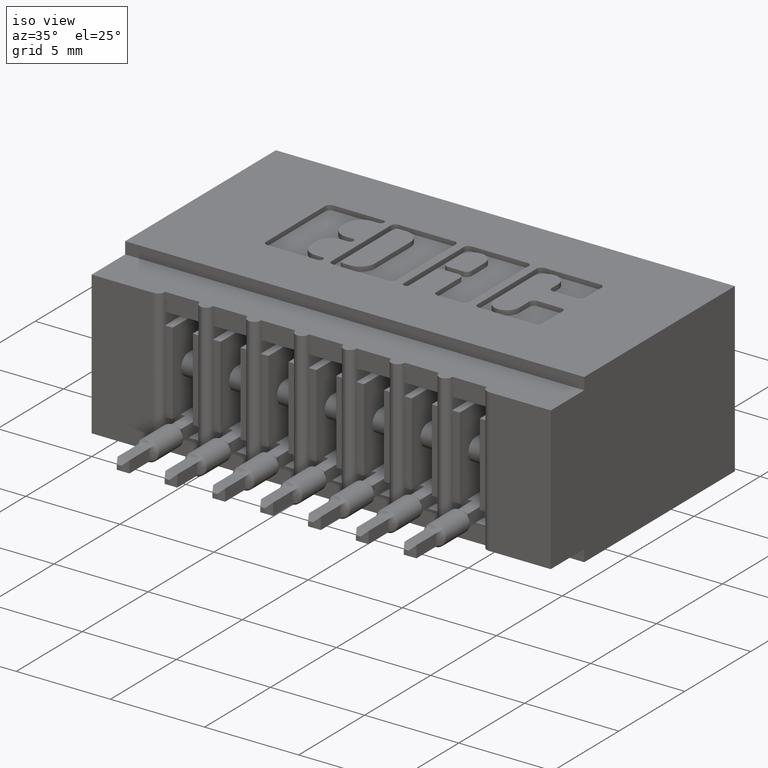
[diagram: clean part render]
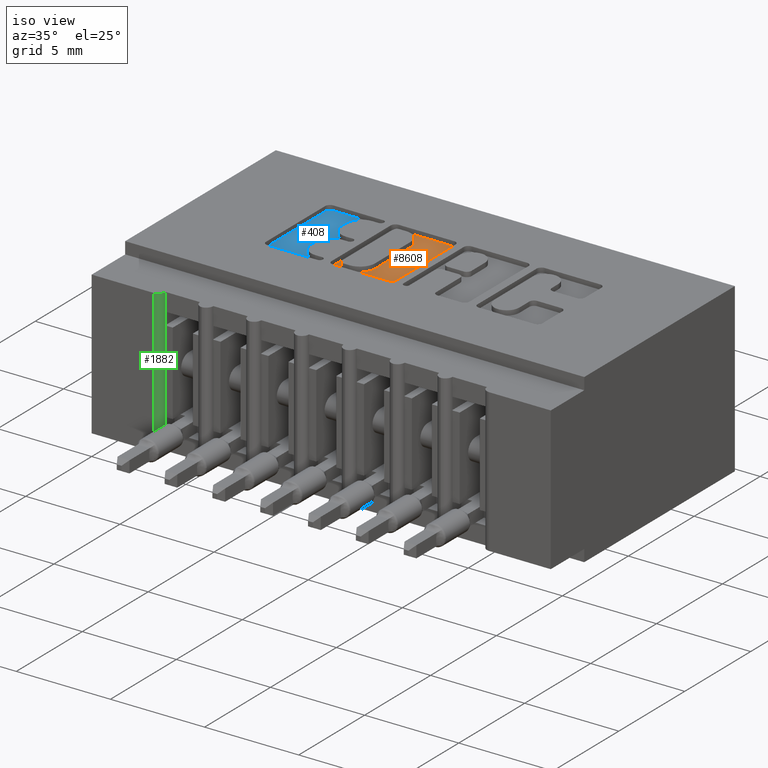
[diagram: same view with three faces highlighted in distinct colors, each labeled with its STEP entity id]
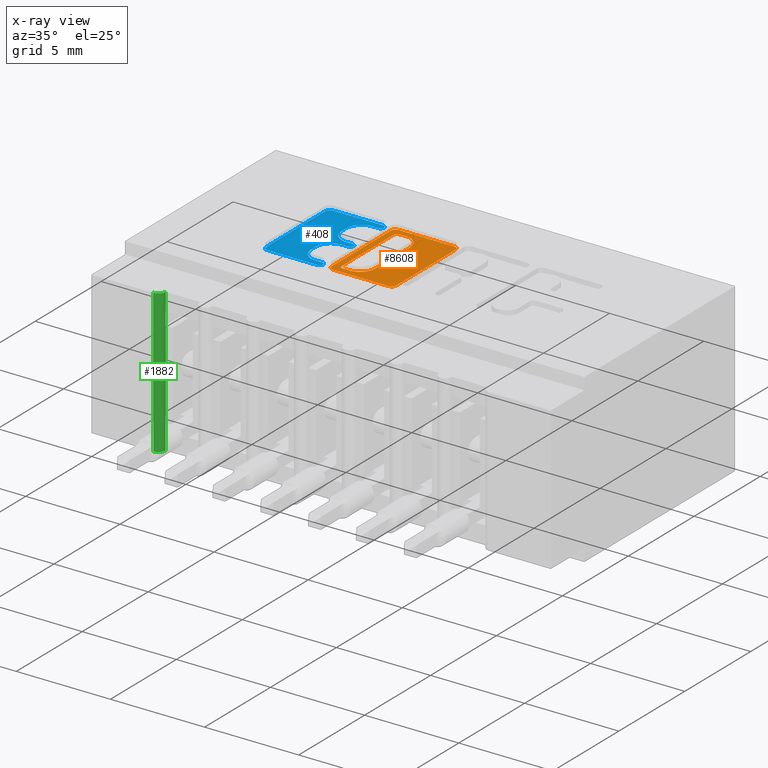
[diagram: x-ray of the same camera — body ghosted, the three highlighted faces saturated]
A machine part, iso view with three faces highlighted in distinct colors.
The next image is the same camera in x-ray (body ghosted, the three faces saturated) — at least one of them is partly hidden behind the body in this view.
Their STEP definitions:

[orange] entity #8608 — the highlighted planar face has unit normal (0, 0, 1).
#8 = DIRECTION ( 'NONE',  ( 1.000000000000000000, 0.0000000000000000000, 0.0000000000000000000 ) ) ;
#33 = EDGE_CURVE ( 'NONE', #13579, #7256, #3753, .T. ) ;
#178 = DIRECTION ( 'NONE',  ( 0.0000000000000000000, 1.000000000000000000, -0.0000000000000000000 ) ) ;
#272 = VERTEX_POINT ( 'NONE', #9736 ) ;
#504 = ORIENTED_EDGE ( 'NONE', *, *, #5638, .T. ) ;
#608 = ORIENTED_EDGE ( 'NONE', *, *, #15634, .T. ) ;
#621 = CARTESIAN_POINT ( 'NONE',  ( 0.3496969780444987300, 0.2474562053899775900, -0.01000000000000000000 ) ) ;
#1015 = DIRECTION ( 'NONE',  ( 1.000000000000000000, 0.0000000000000000000, 0.0000000000000000000 ) ) ;
#1055 = EDGE_LOOP ( 'NONE', ( #7541, #15272, #12362, #15251, #14237, #1564, #16166, #1810 ) ) ;
#1467 = EDGE_CURVE ( 'NONE', #13830, #272, #3519, .T. ) ;
#1482 = EDGE_CURVE ( 'NONE', #5875, #1607, #12809, .T. ) ;
#1564 = ORIENTED_EDGE ( 'NONE', *, *, #6368, .T. ) ;
#1607 = VERTEX_POINT ( 'NONE', #4526 ) ;
#1710 = LINE ( 'NONE', #10295, #14736 ) ;
#1755 = CARTESIAN_POINT ( 'NONE',  ( 0.0000000000000000000, 0.4231567020380511100, -0.01000000000000000000 ) ) ;
#1765 = DIRECTION ( 'NONE',  ( -0.0000000000000000000, 0.0000000000000000000, 1.000000000000000000 ) ) ;
#1780 = DIRECTION ( 'NONE',  ( -0.0000000000000000000, 0.0000000000000000000, 1.000000000000000000 ) ) ;
#1810 = ORIENTED_EDGE ( 'NONE', *, *, #10797, .T. ) ;
#1906 = AXIS2_PLACEMENT_3D ( 'NONE', #9937, #2361, #11205 ) ;
#1940 = ORIENTED_EDGE ( 'NONE', *, *, #14394, .T. ) ;
#2265 = DIRECTION ( 'NONE',  ( -1.000000000000000000, 0.0000000000000000000, 0.0000000000000000000 ) ) ;
#2312 = AXIS2_PLACEMENT_3D ( 'NONE', #12847, #5305, #14100 ) ;
#2361 = DIRECTION ( 'NONE',  ( -0.0000000000000000000, 0.0000000000000000000, 1.000000000000000000 ) ) ;
#2386 = CARTESIAN_POINT ( 'NONE',  ( 0.0000000000000000000, 0.4094147637527246200, -0.01000000000000000000 ) ) ;
#2388 = DIRECTION ( 'NONE',  ( -0.0000000000000000000, 0.0000000000000000000, 1.000000000000000000 ) ) ;
#2434 = CARTESIAN_POINT ( 'NONE',  ( 0.4615956183678960900, 0.4231567020380511100, -0.01000000000000000000 ) ) ;
#2438 = EDGE_CURVE ( 'NONE', #15085, #7253, #14533, .T. ) ;
#3004 = DIRECTION ( 'NONE',  ( -1.000000000000000000, 0.0000000000000000000, 0.0000000000000000000 ) ) ;
#3028 = CARTESIAN_POINT ( 'NONE',  ( 0.3708006689826734400, 0.2405852362473143700, -0.01000000000000000000 ) ) ;
#3188 = CARTESIAN_POINT ( 'NONE',  ( 0.4615956183678279200, 0.4133410318342100600, -0.01000000000000000000 ) ) ;
#3431 = ORIENTED_EDGE ( 'NONE', *, *, #7722, .T. ) ;
#3519 = CIRCLE ( 'NONE', #14000, 0.009815670203806891800 ) ;
#3649 = CARTESIAN_POINT ( 'NONE',  ( 0.4615956183678620000, 0.2268432979619832700, -0.01000000000000000000 ) ) ;
#3753 = CIRCLE ( 'NONE', #13157, 0.006870969142667761500 ) ;
#3936 = CARTESIAN_POINT ( 'NONE',  ( 0.3496969780444987300, 0.0000000000000000000, -0.01000000000000000000 ) ) ;
#4007 = ORIENTED_EDGE ( 'NONE', *, *, #6889, .T. ) ;
#4246 = DIRECTION ( 'NONE',  ( -0.0000000000000000000, 0.0000000000000000000, 1.000000000000000000 ) ) ;
#4259 = FACE_OUTER_BOUND ( 'NONE', #14218, .T. ) ;
#4263 = PLANE ( 'NONE',  #6080 ) ;
#4316 = AXIS2_PLACEMENT_3D ( 'NONE', #9978, #2388, #11233 ) ;
#4490 = DIRECTION ( 'NONE',  ( 1.000000000000000000, 0.0000000000000000000, 0.0000000000000000000 ) ) ;
#4526 = CARTESIAN_POINT ( 'NONE',  ( 0.3457707099630101300, 0.4231567020380511100, -0.01000000000000000000 ) ) ;
#4570 = CARTESIAN_POINT ( 'NONE',  ( 0.3359550397591692400, 0.0000000000000000000, -0.01000000000000000000 ) ) ;
#4574 = CARTESIAN_POINT ( 'NONE',  ( 0.3565679471871620000, 0.2405852362473143700, -0.01000000000000000000 ) ) ;
#4576 = EDGE_CURVE ( 'NONE', #272, #8885, #1710, .T. ) ;
#4861 = CARTESIAN_POINT ( 'NONE',  ( 0.4714112885716690300, 0.4133410318342102300, -0.01000000000000000000 ) ) ;
#5006 = DIRECTION ( 'NONE',  ( 0.0000000000000000000, -1.000000000000000000, 0.0000000000000000000 ) ) ;
#5305 = DIRECTION ( 'NONE',  ( -0.0000000000000000000, 0.0000000000000000000, 1.000000000000000000 ) ) ;
#5620 = EDGE_CURVE ( 'NONE', #11309, #7573, #6416, .T. ) ;
#5638 = EDGE_CURVE ( 'NONE', #9739, #15915, #8981, .T. ) ;
#5783 = DIRECTION ( 'NONE',  ( -0.0000000000000000000, 0.0000000000000000000, 1.000000000000000000 ) ) ;
#5834 = DIRECTION ( 'NONE',  ( 0.0000000000000000000, -1.000000000000000000, 0.0000000000000000000 ) ) ;
#5875 = VERTEX_POINT ( 'NONE', #2434 ) ;
#6080 = AXIS2_PLACEMENT_3D ( 'NONE', #6798, #1765, #10595 ) ;
#6205 = LINE ( 'NONE', #16057, #9569 ) ;
#6368 = EDGE_CURVE ( 'NONE', #15406, #7573, #7972, .T. ) ;
#6371 = EDGE_CURVE ( 'NONE', #15406, #6677, #11701, .T. ) ;
#6412 = VECTOR ( 'NONE', #10027, 39.37007874015748100 ) ;
#6416 = CIRCLE ( 'NONE', #7101, 0.006870969142663253800 ) ;
#6431 = ORIENTED_EDGE ( 'NONE', *, *, #1467, .T. ) ;
#6677 = VERTEX_POINT ( 'NONE', #11860 ) ;
#6798 = CARTESIAN_POINT ( 'NONE',  ( 0.0000000000000000000, 0.0000000000000000000, -0.01000000000000000000 ) ) ;
#6889 = EDGE_CURVE ( 'NONE', #8885, #5875, #13084, .T. ) ;
#7032 = ORIENTED_EDGE ( 'NONE', *, *, #1482, .T. ) ;
#7101 = AXIS2_PLACEMENT_3D ( 'NONE', #13336, #5783, #14590 ) ;
#7234 = ORIENTED_EDGE ( 'NONE', *, *, #4576, .T. ) ;
#7253 = VERTEX_POINT ( 'NONE', #12743 ) ;
#7256 = VERTEX_POINT ( 'NONE', #13988 ) ;
#7541 = ORIENTED_EDGE ( 'NONE', *, *, #33, .F. ) ;
#7573 = VERTEX_POINT ( 'NONE', #4574 ) ;
#7575 = DIRECTION ( 'NONE',  ( -0.0000000000000000000, 0.0000000000000000000, 1.000000000000000000 ) ) ;
#7722 = EDGE_CURVE ( 'NONE', #11374, #13830, #8438, .T. ) ;
#7972 = LINE ( 'NONE', #9840, #14260 ) ;
#8166 = CARTESIAN_POINT ( 'NONE',  ( 0.3359550397591692400, 0.2366589681657900200, -0.01000000000000000000 ) ) ;
#8438 = LINE ( 'NONE', #14864, #14746 ) ;
#8608 = ADVANCED_FACE ( 'NONE', ( #10957, #4259 ), #4263, .T. ) ;
#8885 = VERTEX_POINT ( 'NONE', #4861 ) ;
#8981 = LINE ( 'NONE', #4570, #15263 ) ;
#9350 = CARTESIAN_POINT ( 'NONE',  ( 0.3565679471871665000, 0.4025437946100568500, -0.01000000000000000000 ) ) ;
#9421 = EDGE_CURVE ( 'NONE', #15085, #6677, #6205, .T. ) ;
#9569 = VECTOR ( 'NONE', #5006, 39.37007874015748100 ) ;
#9736 = CARTESIAN_POINT ( 'NONE',  ( 0.4714112885716690300, 0.2366589681657900200, -0.01000000000000000000 ) ) ;
#9739 = VERTEX_POINT ( 'NONE', #13949 ) ;
#9840 = CARTESIAN_POINT ( 'NONE',  ( 0.0000000000000000000, 0.2405852362473143700, -0.01000000000000000000 ) ) ;
#9937 = CARTESIAN_POINT ( 'NONE',  ( 0.3457707099629759900, 0.2366589681657900200, -0.01000000000000000000 ) ) ;
#9959 = CARTESIAN_POINT ( 'NONE',  ( 0.4022108136348436800, 0.3780046191005526600, -0.01000000000000000000 ) ) ;
#9978 = CARTESIAN_POINT ( 'NONE',  ( 0.3708006689826717800, 0.3780046191005526600, -0.01000000000000000000 ) ) ;
#10027 = DIRECTION ( 'NONE',  ( 1.000000000000000000, 0.0000000000000000000, 0.0000000000000000000 ) ) ;
#10295 = CARTESIAN_POINT ( 'NONE',  ( 0.4714112885716690300, 0.0000000000000000000, -0.01000000000000000000 ) ) ;
#10353 = DIRECTION ( 'NONE',  ( 0.0000000000000000000, 1.000000000000000000, -0.0000000000000000000 ) ) ;
#10427 = VECTOR ( 'NONE', #178, 39.37007874015748100 ) ;
#10595 = DIRECTION ( 'NONE',  ( 1.000000000000000000, 0.0000000000000000000, 0.0000000000000000000 ) ) ;
#10612 = DIRECTION ( 'NONE',  ( 1.000000000000000000, 0.0000000000000000000, 0.0000000000000000000 ) ) ;
#10797 = EDGE_CURVE ( 'NONE', #11309, #7256, #10810, .T. ) ;
#10810 = LINE ( 'NONE', #3936, #10427 ) ;
#10957 = FACE_BOUND ( 'NONE', #1055, .T. ) ;
#11205 = DIRECTION ( 'NONE',  ( 1.000000000000000000, 0.0000000000000000000, 0.0000000000000000000 ) ) ;
#11233 = DIRECTION ( 'NONE',  ( 1.000000000000000000, 0.0000000000000000000, 0.0000000000000000000 ) ) ;
#11309 = VERTEX_POINT ( 'NONE', #621 ) ;
#11374 = VERTEX_POINT ( 'NONE', #15890 ) ;
#11701 = CIRCLE ( 'NONE', #15956, 0.03141014465217023500 ) ;
#11801 = CARTESIAN_POINT ( 'NONE',  ( 0.4615956183678620000, 0.2366589681657900200, -0.01000000000000000000 ) ) ;
#11860 = CARTESIAN_POINT ( 'NONE',  ( 0.4022108136348436800, 0.2719953808994846100, -0.01000000000000000000 ) ) ;
#12022 = DIRECTION ( 'NONE',  ( -0.0000000000000000000, 0.0000000000000000000, 1.000000000000000000 ) ) ;
#12362 = ORIENTED_EDGE ( 'NONE', *, *, #2438, .F. ) ;
#12406 = VECTOR ( 'NONE', #3004, 39.37007874015748100 ) ;
#12743 = CARTESIAN_POINT ( 'NONE',  ( 0.3708006689826779900, 0.4094147637527246200, -0.01000000000000000000 ) ) ;
#12747 = CIRCLE ( 'NONE', #2312, 0.009815670203840902800 ) ;
#12809 = LINE ( 'NONE', #1755, #12406 ) ;
#12847 = CARTESIAN_POINT ( 'NONE',  ( 0.3457707099630101300, 0.4133410318342102300, -0.01000000000000000000 ) ) ;
#13077 = DIRECTION ( 'NONE',  ( 1.000000000000000000, 0.0000000000000000000, 0.0000000000000000000 ) ) ;
#13084 = CIRCLE ( 'NONE', #14498, 0.009815670203841039800 ) ;
#13157 = AXIS2_PLACEMENT_3D ( 'NONE', #9350, #1780, #10612 ) ;
#13336 = CARTESIAN_POINT ( 'NONE',  ( 0.3565679471871620000, 0.2474562053899775900, -0.01000000000000000000 ) ) ;
#13579 = VERTEX_POINT ( 'NONE', #14070 ) ;
#13830 = VERTEX_POINT ( 'NONE', #3649 ) ;
#13949 = CARTESIAN_POINT ( 'NONE',  ( 0.3359550397591692400, 0.4133410318342102300, -0.01000000000000000000 ) ) ;
#13988 = CARTESIAN_POINT ( 'NONE',  ( 0.3496969780444987300, 0.4025437946100568500, -0.01000000000000000000 ) ) ;
#14000 = AXIS2_PLACEMENT_3D ( 'NONE', #11801, #4246, #13077 ) ;
#14070 = CARTESIAN_POINT ( 'NONE',  ( 0.3565679471871665000, 0.4094147637527246200, -0.01000000000000000000 ) ) ;
#14100 = DIRECTION ( 'NONE',  ( 1.000000000000000000, 0.0000000000000000000, 0.0000000000000000000 ) ) ;
#14218 = EDGE_LOOP ( 'NONE', ( #7234, #4007, #7032, #1940, #504, #608, #3431, #6431 ) ) ;
#14237 = ORIENTED_EDGE ( 'NONE', *, *, #6371, .F. ) ;
#14260 = VECTOR ( 'NONE', #2265, 39.37007874015748100 ) ;
#14394 = EDGE_CURVE ( 'NONE', #1607, #9739, #12747, .T. ) ;
#14498 = AXIS2_PLACEMENT_3D ( 'NONE', #3188, #12022, #4490 ) ;
#14533 = CIRCLE ( 'NONE', #4316, 0.03141014465217194900 ) ;
#14590 = DIRECTION ( 'NONE',  ( 1.000000000000000000, 0.0000000000000000000, 0.0000000000000000000 ) ) ;
#14656 = CIRCLE ( 'NONE', #1906, 0.009815670203806754800 ) ;
#14736 = VECTOR ( 'NONE', #10353, 39.37007874015748100 ) ;
#14746 = VECTOR ( 'NONE', #1015, 39.37007874015748100 ) ;
#14864 = CARTESIAN_POINT ( 'NONE',  ( 0.0000000000000000000, 0.2268432979619832700, -0.01000000000000000000 ) ) ;
#14903 = EDGE_CURVE ( 'NONE', #13579, #7253, #16045, .T. ) ;
#15085 = VERTEX_POINT ( 'NONE', #9959 ) ;
#15115 = CARTESIAN_POINT ( 'NONE',  ( 0.3708006689826734400, 0.2719953808994846100, -0.01000000000000000000 ) ) ;
#15251 = ORIENTED_EDGE ( 'NONE', *, *, #9421, .T. ) ;
#15263 = VECTOR ( 'NONE', #5834, 39.37007874015748100 ) ;
#15272 = ORIENTED_EDGE ( 'NONE', *, *, #14903, .T. ) ;
#15406 = VERTEX_POINT ( 'NONE', #3028 ) ;
#15634 = EDGE_CURVE ( 'NONE', #15915, #11374, #14656, .T. ) ;
#15890 = CARTESIAN_POINT ( 'NONE',  ( 0.3457707099629759900, 0.2268432979619832700, -0.01000000000000000000 ) ) ;
#15915 = VERTEX_POINT ( 'NONE', #8166 ) ;
#15956 = AXIS2_PLACEMENT_3D ( 'NONE', #15115, #7575, #8 ) ;
#16045 = LINE ( 'NONE', #2386, #6412 ) ;
#16057 = CARTESIAN_POINT ( 'NONE',  ( 0.4022108136348436800, 0.0000000000000000000, -0.01000000000000000000 ) ) ;
#16166 = ORIENTED_EDGE ( 'NONE', *, *, #5620, .F. ) ;

[blue] entity #408 — the highlighted planar face has unit normal (0, 0, 1).
#219 = DIRECTION ( 'NONE',  ( 0.0000000000000000000, 1.000000000000000000, -0.0000000000000000000 ) ) ;
#232 = CARTESIAN_POINT ( 'NONE',  ( 0.0000000000000000000, 0.3181290308573568900, -0.01000000000000000000 ) ) ;
#294 = CARTESIAN_POINT ( 'NONE',  ( 0.1990264404161153900, 0.2366589681657900200, -0.01000000000000000000 ) ) ;
#315 = DIRECTION ( 'NONE',  ( 1.000000000000000000, 0.0000000000000000000, 0.0000000000000000000 ) ) ;
#408 = ADVANCED_FACE ( 'NONE', ( #8693 ), #12365, .T. ) ;
#424 = EDGE_CURVE ( 'NONE', #14209, #5314, #4937, .T. ) ;
#456 = LINE ( 'NONE', #232, #13108 ) ;
#640 = ORIENTED_EDGE ( 'NONE', *, *, #8690, .T. ) ;
#646 = CARTESIAN_POINT ( 'NONE',  ( 0.2996370600051254100, 0.4094147637527357800, -0.01000000000000000000 ) ) ;
#767 = VERTEX_POINT ( 'NONE', #12860 ) ;
#772 = EDGE_CURVE ( 'NONE', #11042, #5314, #2346, .T. ) ;
#828 = DIRECTION ( 'NONE',  ( 1.000000000000000000, 0.0000000000000000000, 0.0000000000000000000 ) ) ;
#894 = DIRECTION ( 'NONE',  ( 1.000000000000000000, 0.0000000000000000000, 0.0000000000000000000 ) ) ;
#1107 = CARTESIAN_POINT ( 'NONE',  ( 0.2996370600050840000, 0.2867188862052006400, -0.01000000000000000000 ) ) ;
#1330 = VERTEX_POINT ( 'NONE', #8290 ) ;
#1696 = CARTESIAN_POINT ( 'NONE',  ( 0.3131336065353513300, 0.4094147637527357800, -0.01000000000000000000 ) ) ;
#1706 = LINE ( 'NONE', #5714, #11365 ) ;
#1712 = CARTESIAN_POINT ( 'NONE',  ( 0.1990264404161153900, 0.0000000000000000000, -0.01000000000000000000 ) ) ;
#1937 = VERTEX_POINT ( 'NONE', #8043 ) ;
#2159 = EDGE_CURVE ( 'NONE', #9976, #9151, #10416, .T. ) ;
#2209 = CARTESIAN_POINT ( 'NONE',  ( 0.2996370600051095300, 0.2405852362473086800, -0.01000000000000000000 ) ) ;
#2346 = LINE ( 'NONE', #2740, #15366 ) ;
#2359 = DIRECTION ( 'NONE',  ( 1.000000000000000000, 0.0000000000000000000, 0.0000000000000000000 ) ) ;
#2369 = CARTESIAN_POINT ( 'NONE',  ( 0.2682269153529095500, 0.3632811137948584500, -0.01000000000000000000 ) ) ;
#2424 = VECTOR ( 'NONE', #13333, 39.37007874015748100 ) ;
#2447 = CIRCLE ( 'NONE', #10777, 0.03141014465221589300 ) ;
#2483 = VECTOR ( 'NONE', #315, 39.37007874015748100 ) ;
#2523 = CARTESIAN_POINT ( 'NONE',  ( 0.3131336064154143200, 0.2268432979619858000, -0.01000000000000000000 ) ) ;
#2641 = LINE ( 'NONE', #7011, #5647 ) ;
#2704 = CIRCLE ( 'NONE', #2995, 0.006870969142663527000 ) ;
#2740 = CARTESIAN_POINT ( 'NONE',  ( 0.2682269153529277500, 0.0000000000000000000, -0.01000000000000000000 ) ) ;
#2788 = VERTEX_POINT ( 'NONE', #2209 ) ;
#2791 = CARTESIAN_POINT ( 'NONE',  ( 0.3200045756779734700, 0.3250000000000204400, -0.01000000000000000000 ) ) ;
#2794 = ORIENTED_EDGE ( 'NONE', *, *, #3298, .T. ) ;
#2806 = DIRECTION ( 'NONE',  ( -0.0000000000000000000, 0.0000000000000000000, 1.000000000000000000 ) ) ;
#2917 = DIRECTION ( 'NONE',  ( 1.000000000000000000, 7.203446383881649800E-015, 0.0000000000000000000 ) ) ;
#2978 = CARTESIAN_POINT ( 'NONE',  ( 0.2996370600051095300, 0.2719953808994904900, -0.01000000000000000000 ) ) ;
#2995 = AXIS2_PLACEMENT_3D ( 'NONE', #6270, #15067, #7537 ) ;
#3056 = AXIS2_PLACEMENT_3D ( 'NONE', #2978, #11821, #4279 ) ;
#3135 = EDGE_CURVE ( 'NONE', #3523, #7967, #4645, .T. ) ;
#3198 = EDGE_LOOP ( 'NONE', ( #11279, #4234, #12994, #14090, #9898, #4407, #9645, #640, #11838, #12998, #3635, #7919, #8886, #13080, #12317, #11378, #6213, #4960, #2794, #11387, #8732 ) ) ;
#3202 = CARTESIAN_POINT ( 'NONE',  ( 0.3131336064154143200, 0.2405852362473102900, -0.01000000000000000000 ) ) ;
#3254 = AXIS2_PLACEMENT_3D ( 'NONE', #15934, #8407, #828 ) ;
#3270 = EDGE_CURVE ( 'NONE', #8548, #1330, #16065, .T. ) ;
#3298 = EDGE_CURVE ( 'NONE', #1330, #9921, #2641, .T. ) ;
#3523 = VERTEX_POINT ( 'NONE', #14985 ) ;
#3635 = ORIENTED_EDGE ( 'NONE', *, *, #11226, .T. ) ;
#3683 = CIRCLE ( 'NONE', #3254, 0.006870969142648501700 ) ;
#3931 = EDGE_CURVE ( 'NONE', #5823, #15725, #16217, .T. ) ;
#4089 = CARTESIAN_POINT ( 'NONE',  ( 0.2682269153529095500, 0.0000000000000000000, -0.01000000000000000000 ) ) ;
#4234 = ORIENTED_EDGE ( 'NONE', *, *, #2159, .T. ) ;
#4279 = DIRECTION ( 'NONE',  ( 1.000000000000000000, 0.0000000000000000000, 0.0000000000000000000 ) ) ;
#4407 = ORIENTED_EDGE ( 'NONE', *, *, #5410, .T. ) ;
#4410 = DIRECTION ( 'NONE',  ( -1.000000000000000000, 0.0000000000000000000, 0.0000000000000000000 ) ) ;
#4437 = DIRECTION ( 'NONE',  ( -1.000000000000000000, -1.189163988687022500E-013, 0.0000000000000000000 ) ) ;
#4488 = CARTESIAN_POINT ( 'NONE',  ( 0.2088421106199221700, 0.2366589681657900200, -0.01000000000000000000 ) ) ;
#4645 = LINE ( 'NONE', #1712, #5048 ) ;
#4648 = CARTESIAN_POINT ( 'NONE',  ( 0.2088421106199380200, 0.4133410318342102300, -0.01000000000000000000 ) ) ;
#4797 = VECTOR ( 'NONE', #10431, 39.37007874015748100 ) ;
#4818 = CIRCLE ( 'NONE', #3056, 0.03141014465218178200 ) ;
#4841 = DIRECTION ( 'NONE',  ( -0.0000000000000000000, 0.0000000000000000000, 1.000000000000000000 ) ) ;
#4908 = CARTESIAN_POINT ( 'NONE',  ( 0.2682269153529277500, 0.2719953808994904900, -0.01000000000000000000 ) ) ;
#4937 = CIRCLE ( 'NONE', #11583, 0.03141014465215624000 ) ;
#4960 = ORIENTED_EDGE ( 'NONE', *, *, #3270, .T. ) ;
#5048 = VECTOR ( 'NONE', #10528, 39.37007874015748100 ) ;
#5194 = LINE ( 'NONE', #4089, #4797 ) ;
#5314 = VERTEX_POINT ( 'NONE', #10709 ) ;
#5336 = VERTEX_POINT ( 'NONE', #3202 ) ;
#5410 = EDGE_CURVE ( 'NONE', #15725, #3523, #9587, .T. ) ;
#5412 = EDGE_CURVE ( 'NONE', #9976, #14028, #2447, .T. ) ;
#5430 = CARTESIAN_POINT ( 'NONE',  ( -1.634053534412038100E-015, 0.2268432979619835500, -0.01000000000000000000 ) ) ;
#5513 = CARTESIAN_POINT ( 'NONE',  ( 0.3131336065353355100, 0.2337142671046480400, -0.01000000000000000000 ) ) ;
#5518 = EDGE_CURVE ( 'NONE', #8320, #9921, #14696, .T. ) ;
#5647 = VECTOR ( 'NONE', #4410, 39.37007874015748100 ) ;
#5714 = CARTESIAN_POINT ( 'NONE',  ( -2.860952991550168800E-014, 0.2405852362472730700, -0.01000000000000000000 ) ) ;
#5753 = DIRECTION ( 'NONE',  ( 1.000000000000000000, 0.0000000000000000000, 0.0000000000000000000 ) ) ;
#5789 = CARTESIAN_POINT ( 'NONE',  ( 0.3131336064153887900, 0.3181290308573568900, -0.01000000000000000000 ) ) ;
#5823 = VERTEX_POINT ( 'NONE', #6162 ) ;
#5833 = CARTESIAN_POINT ( 'NONE',  ( 0.3200045756779977300, 0.2337142671046480400, -0.01000000000000000000 ) ) ;
#5917 = DIRECTION ( 'NONE',  ( 1.000000000000000000, 0.0000000000000000000, 0.0000000000000000000 ) ) ;
#6063 = EDGE_CURVE ( 'NONE', #12238, #10524, #9359, .T. ) ;
#6147 = EDGE_CURVE ( 'NONE', #11042, #2788, #4818, .T. ) ;
#6162 = CARTESIAN_POINT ( 'NONE',  ( 0.3131336065353512700, 0.4231567020380327900, -0.01000000000000000000 ) ) ;
#6213 = ORIENTED_EDGE ( 'NONE', *, *, #10691, .T. ) ;
#6270 = CARTESIAN_POINT ( 'NONE',  ( 0.3131336065353099700, 0.3250000000000204400, -0.01000000000000000000 ) ) ;
#6588 = EDGE_CURVE ( 'NONE', #1937, #12238, #14050, .T. ) ;
#6763 = DIRECTION ( 'NONE',  ( 1.000000000000000000, 0.0000000000000000000, 0.0000000000000000000 ) ) ;
#6948 = DIRECTION ( 'NONE',  ( -0.0000000000000000000, 0.0000000000000000000, 1.000000000000000000 ) ) ;
#7011 = CARTESIAN_POINT ( 'NONE',  ( 0.0000000000000000000, 0.3318709691426839900, -0.01000000000000000000 ) ) ;
#7092 = AXIS2_PLACEMENT_3D ( 'NONE', #12397, #4841, #13659 ) ;
#7352 = DIRECTION ( 'NONE',  ( -0.0000000000000000000, 0.0000000000000000000, 1.000000000000000000 ) ) ;
#7356 = DIRECTION ( 'NONE',  ( -0.0000000000000000000, 0.0000000000000000000, 1.000000000000000000 ) ) ;
#7537 = DIRECTION ( 'NONE',  ( 1.000000000000000000, 0.0000000000000000000, 0.0000000000000000000 ) ) ;
#7919 = ORIENTED_EDGE ( 'NONE', *, *, #8153, .T. ) ;
#7960 = CARTESIAN_POINT ( 'NONE',  ( 0.2682269153529095500, 0.3780046191005198600, -0.01000000000000000000 ) ) ;
#7967 = VERTEX_POINT ( 'NONE', #294 ) ;
#8043 = CARTESIAN_POINT ( 'NONE',  ( 0.2088421106199185600, 0.2268432979619850500, -0.01000000000000000000 ) ) ;
#8111 = CARTESIAN_POINT ( 'NONE',  ( 0.2996370600050840000, 0.3318709691426839900, -0.01000000000000000000 ) ) ;
#8153 = EDGE_CURVE ( 'NONE', #5336, #2788, #1706, .T. ) ;
#8263 = CARTESIAN_POINT ( 'NONE',  ( 0.0000000000000000000, 0.4231567020380327900, -0.01000000000000000000 ) ) ;
#8290 = CARTESIAN_POINT ( 'NONE',  ( 0.3131336065353099700, 0.3318709691426839900, -0.01000000000000000000 ) ) ;
#8320 = VERTEX_POINT ( 'NONE', #2369 ) ;
#8407 = DIRECTION ( 'NONE',  ( -0.0000000000000000000, 0.0000000000000000000, 1.000000000000000000 ) ) ;
#8460 = DIRECTION ( 'NONE',  ( -0.0000000000000000000, 0.0000000000000000000, 1.000000000000000000 ) ) ;
#8548 = VERTEX_POINT ( 'NONE', #2791 ) ;
#8690 = EDGE_CURVE ( 'NONE', #7967, #1937, #13909, .T. ) ;
#8693 = FACE_OUTER_BOUND ( 'NONE', #3198, .T. ) ;
#8732 = ORIENTED_EDGE ( 'NONE', *, *, #15863, .T. ) ;
#8886 = ORIENTED_EDGE ( 'NONE', *, *, #6147, .F. ) ;
#9150 = CARTESIAN_POINT ( 'NONE',  ( 0.0000000000000000000, 0.4094147637527357800, -0.01000000000000000000 ) ) ;
#9151 = VERTEX_POINT ( 'NONE', #1696 ) ;
#9359 = CIRCLE ( 'NONE', #11833, 0.006870969142662229500 ) ;
#9587 = CIRCLE ( 'NONE', #9938, 0.009815670203822599700 ) ;
#9645 = ORIENTED_EDGE ( 'NONE', *, *, #3135, .T. ) ;
#9776 = CIRCLE ( 'NONE', #7092, 0.006870969142648501700 ) ;
#9898 = ORIENTED_EDGE ( 'NONE', *, *, #3931, .T. ) ;
#9921 = VERTEX_POINT ( 'NONE', #8111 ) ;
#9933 = DIRECTION ( 'NONE',  ( -0.0000000000000000000, 0.0000000000000000000, 1.000000000000000000 ) ) ;
#9938 = AXIS2_PLACEMENT_3D ( 'NONE', #4648, #13477, #5917 ) ;
#9976 = VERTEX_POINT ( 'NONE', #646 ) ;
#10051 = CARTESIAN_POINT ( 'NONE',  ( 0.2088421106199380200, 0.4231567020380327900, -0.01000000000000000000 ) ) ;
#10052 = VERTEX_POINT ( 'NONE', #5789 ) ;
#10291 = AXIS2_PLACEMENT_3D ( 'NONE', #4488, #13300, #5753 ) ;
#10332 = DIRECTION ( 'NONE',  ( 1.000000000000000000, 0.0000000000000000000, 0.0000000000000000000 ) ) ;
#10405 = CARTESIAN_POINT ( 'NONE',  ( 0.3131336065353355100, 0.2337142671046480400, -0.01000000000000000000 ) ) ;
#10416 = LINE ( 'NONE', #9150, #2483 ) ;
#10431 = DIRECTION ( 'NONE',  ( 0.0000000000000000000, 1.000000000000000000, -0.0000000000000000000 ) ) ;
#10524 = VERTEX_POINT ( 'NONE', #5833 ) ;
#10528 = DIRECTION ( 'NONE',  ( 0.0000000000000000000, -1.000000000000000000, 0.0000000000000000000 ) ) ;
#10691 = EDGE_CURVE ( 'NONE', #10052, #8548, #2704, .T. ) ;
#10708 = VECTOR ( 'NONE', #2917, 39.37007874015748100 ) ;
#10709 = CARTESIAN_POINT ( 'NONE',  ( 0.2682269153529277500, 0.2867188862052006400, -0.01000000000000000000 ) ) ;
#10721 = AXIS2_PLACEMENT_3D ( 'NONE', #13625, #7352, #16133 ) ;
#10777 = AXIS2_PLACEMENT_3D ( 'NONE', #15981, #8460, #894 ) ;
#11042 = VERTEX_POINT ( 'NONE', #4908 ) ;
#11158 = AXIS2_PLACEMENT_3D ( 'NONE', #5513, #14301, #6763 ) ;
#11226 = EDGE_CURVE ( 'NONE', #10524, #5336, #13374, .T. ) ;
#11279 = ORIENTED_EDGE ( 'NONE', *, *, #5412, .F. ) ;
#11365 = VECTOR ( 'NONE', #4437, 39.37007874015748100 ) ;
#11378 = ORIENTED_EDGE ( 'NONE', *, *, #15237, .T. ) ;
#11387 = ORIENTED_EDGE ( 'NONE', *, *, #5518, .F. ) ;
#11583 = AXIS2_PLACEMENT_3D ( 'NONE', #1107, #9933, #2359 ) ;
#11658 = DIRECTION ( 'NONE',  ( 1.000000000000000000, 0.0000000000000000000, 0.0000000000000000000 ) ) ;
#11821 = DIRECTION ( 'NONE',  ( -0.0000000000000000000, 0.0000000000000000000, 1.000000000000000000 ) ) ;
#11833 = AXIS2_PLACEMENT_3D ( 'NONE', #10405, #2806, #11658 ) ;
#11838 = ORIENTED_EDGE ( 'NONE', *, *, #6588, .T. ) ;
#12238 = VERTEX_POINT ( 'NONE', #2523 ) ;
#12317 = ORIENTED_EDGE ( 'NONE', *, *, #424, .F. ) ;
#12365 = PLANE ( 'NONE',  #10721 ) ;
#12397 = CARTESIAN_POINT ( 'NONE',  ( 0.3131336065353512700, 0.4162857328953863400, -0.01000000000000000000 ) ) ;
#12860 = CARTESIAN_POINT ( 'NONE',  ( 0.3200045756779997800, 0.4162857328953863400, -0.01000000000000000000 ) ) ;
#12994 = ORIENTED_EDGE ( 'NONE', *, *, #14824, .T. ) ;
#12998 = ORIENTED_EDGE ( 'NONE', *, *, #6063, .T. ) ;
#13001 = AXIS2_PLACEMENT_3D ( 'NONE', #14494, #6948, #15748 ) ;
#13080 = ORIENTED_EDGE ( 'NONE', *, *, #772, .T. ) ;
#13108 = VECTOR ( 'NONE', #10332, 39.37007874015748100 ) ;
#13300 = DIRECTION ( 'NONE',  ( -0.0000000000000000000, 0.0000000000000000000, 1.000000000000000000 ) ) ;
#13333 = DIRECTION ( 'NONE',  ( -1.000000000000000000, 0.0000000000000000000, 0.0000000000000000000 ) ) ;
#13374 = CIRCLE ( 'NONE', #11158, 0.006870969142662229500 ) ;
#13463 = CARTESIAN_POINT ( 'NONE',  ( 0.2996370600050840000, 0.3181290308573568900, -0.01000000000000000000 ) ) ;
#13477 = DIRECTION ( 'NONE',  ( -0.0000000000000000000, 0.0000000000000000000, 1.000000000000000000 ) ) ;
#13625 = CARTESIAN_POINT ( 'NONE',  ( 0.0000000000000000000, 0.0000000000000000000, -0.01000000000000000000 ) ) ;
#13659 = DIRECTION ( 'NONE',  ( 1.000000000000000000, 0.0000000000000000000, 0.0000000000000000000 ) ) ;
#13662 = EDGE_CURVE ( 'NONE', #767, #5823, #3683, .T. ) ;
#13909 = CIRCLE ( 'NONE', #10291, 0.009815670203805868300 ) ;
#14028 = VERTEX_POINT ( 'NONE', #7960 ) ;
#14050 = LINE ( 'NONE', #5430, #10708 ) ;
#14090 = ORIENTED_EDGE ( 'NONE', *, *, #13662, .T. ) ;
#14209 = VERTEX_POINT ( 'NONE', #13463 ) ;
#14301 = DIRECTION ( 'NONE',  ( -0.0000000000000000000, 0.0000000000000000000, 1.000000000000000000 ) ) ;
#14494 = CARTESIAN_POINT ( 'NONE',  ( 0.3131336065353099700, 0.3250000000000204400, -0.01000000000000000000 ) ) ;
#14696 = CIRCLE ( 'NONE', #15823, 0.03141014465217447500 ) ;
#14824 = EDGE_CURVE ( 'NONE', #9151, #767, #9776, .T. ) ;
#14899 = CARTESIAN_POINT ( 'NONE',  ( 0.2996370600050840000, 0.3632811137948584500, -0.01000000000000000000 ) ) ;
#14985 = CARTESIAN_POINT ( 'NONE',  ( 0.1990264404161153900, 0.4133410318342102300, -0.01000000000000000000 ) ) ;
#15067 = DIRECTION ( 'NONE',  ( -0.0000000000000000000, 0.0000000000000000000, 1.000000000000000000 ) ) ;
#15237 = EDGE_CURVE ( 'NONE', #14209, #10052, #456, .T. ) ;
#15366 = VECTOR ( 'NONE', #219, 39.37007874015748100 ) ;
#15725 = VERTEX_POINT ( 'NONE', #10051 ) ;
#15748 = DIRECTION ( 'NONE',  ( 1.000000000000000000, 0.0000000000000000000, 0.0000000000000000000 ) ) ;
#15823 = AXIS2_PLACEMENT_3D ( 'NONE', #14899, #7356, #16140 ) ;
#15863 = EDGE_CURVE ( 'NONE', #8320, #14028, #5194, .T. ) ;
#15934 = CARTESIAN_POINT ( 'NONE',  ( 0.3131336065353512700, 0.4162857328953863400, -0.01000000000000000000 ) ) ;
#15981 = CARTESIAN_POINT ( 'NONE',  ( 0.2996370600051254100, 0.3780046191005198600, -0.01000000000000000000 ) ) ;
#16065 = CIRCLE ( 'NONE', #13001, 0.006870969142663527000 ) ;
#16133 = DIRECTION ( 'NONE',  ( 1.000000000000000000, 0.0000000000000000000, 0.0000000000000000000 ) ) ;
#16140 = DIRECTION ( 'NONE',  ( 1.000000000000000000, 0.0000000000000000000, 0.0000000000000000000 ) ) ;
#16217 = LINE ( 'NONE', #8263, #2424 ) ;

[green] entity #1882 — the highlighted cylindrical surface (edge-blend (fillet) strip) has radius 0.381 mm, axis along (0, 0, 1).
#81 = LINE ( 'NONE', #8209, #12728 ) ;
#353 = AXIS2_PLACEMENT_3D ( 'NONE', #2728, #11579, #4012 ) ;
#545 = FACE_OUTER_BOUND ( 'NONE', #16171, .T. ) ;
#648 = DIRECTION ( 'NONE',  ( -0.0000000000000000000, 0.0000000000000000000, 1.000000000000000000 ) ) ;
#1501 = CIRCLE ( 'NONE', #10345, 0.01499999999999997700 ) ;
#1505 = VERTEX_POINT ( 'NONE', #4308 ) ;
#1878 = DIRECTION ( 'NONE',  ( -0.0000000000000000000, -0.0000000000000000000, 1.000000000000000000 ) ) ;
#1882 = ADVANCED_FACE ( 'NONE', ( #545 ), #13581, .T. ) ;
#1909 = ORIENTED_EDGE ( 'NONE', *, *, #5566, .T. ) ;
#1929 = CARTESIAN_POINT ( 'NONE',  ( 0.1439999999999996600, 0.01499999999999998900, -0.08849999999999995400 ) ) ;
#2074 = CARTESIAN_POINT ( 'NONE',  ( 0.1289999999999997000, 0.0000000000000000000, -0.02500000000000000500 ) ) ;
#2347 = DIRECTION ( 'NONE',  ( -0.0000000000000000000, -0.0000000000000000000, 1.000000000000000000 ) ) ;
#2529 = ORIENTED_EDGE ( 'NONE', *, *, #7762, .F. ) ;
#2728 = CARTESIAN_POINT ( 'NONE',  ( 0.1289999999999997000, 0.01499999999999997700, -0.3249999999999999600 ) ) ;
#2737 = ORIENTED_EDGE ( 'NONE', *, *, #3588, .T. ) ;
#2818 = DIRECTION ( 'NONE',  ( 1.000000000000000000, 0.0000000000000000000, 0.0000000000000000000 ) ) ;
#2974 = VERTEX_POINT ( 'NONE', #8949 ) ;
#3588 = EDGE_CURVE ( 'NONE', #14132, #1505, #11734, .T. ) ;
#3672 = CARTESIAN_POINT ( 'NONE',  ( 0.1289999999999997000, 0.0000000000000000000, -0.3249999999999999600 ) ) ;
#3732 = DIRECTION ( 'NONE',  ( -0.0000000000000000000, -0.0000000000000000000, 1.000000000000000000 ) ) ;
#3861 = CARTESIAN_POINT ( 'NONE',  ( 0.1439999999999996600, 0.01499999999999997500, -0.2615000000000001200 ) ) ;
#4012 = DIRECTION ( 'NONE',  ( 1.000000000000000000, 0.0000000000000000000, 0.0000000000000000000 ) ) ;
#4157 = EDGE_CURVE ( 'NONE', #14763, #13769, #1501, .T. ) ;
#4161 = VERTEX_POINT ( 'NONE', #1929 ) ;
#4295 = LINE ( 'NONE', #8649, #10600 ) ;
#4308 = CARTESIAN_POINT ( 'NONE',  ( 0.1439999999999996600, 0.01500000000000003200, -0.2875000000000000900 ) ) ;
#4364 = EDGE_CURVE ( 'NONE', #15764, #4161, #11589, .T. ) ;
#4628 = VECTOR ( 'NONE', #3732, 39.37007874015748100 ) ;
#4891 = VECTOR ( 'NONE', #2347, 39.37007874015748100 ) ;
#5106 = CIRCLE ( 'NONE', #353, 0.01499999999999997700 ) ;
#5566 = EDGE_CURVE ( 'NONE', #4161, #2974, #81, .T. ) ;
#5699 = CARTESIAN_POINT ( 'NONE',  ( 0.1439999999999996600, 0.01499999999999997500, -0.3249999999999999600 ) ) ;
#6074 = CARTESIAN_POINT ( 'NONE',  ( 0.1439999999999996600, 0.01499999999999997500, -0.3499999999999999800 ) ) ;
#6943 = ORIENTED_EDGE ( 'NONE', *, *, #11875, .T. ) ;
#7312 = EDGE_CURVE ( 'NONE', #7825, #14132, #5106, .T. ) ;
#7762 = EDGE_CURVE ( 'NONE', #7825, #14763, #4295, .T. ) ;
#7825 = VERTEX_POINT ( 'NONE', #3672 ) ;
#7885 = DIRECTION ( 'NONE',  ( -0.0000000000000000000, -0.0000000000000000000, 1.000000000000000000 ) ) ;
#8106 = ORIENTED_EDGE ( 'NONE', *, *, #7312, .T. ) ;
#8209 = CARTESIAN_POINT ( 'NONE',  ( 0.1439999999999996600, 0.01499999999999997500, -0.3499999999999999800 ) ) ;
#8227 = CARTESIAN_POINT ( 'NONE',  ( 0.1289999999999997000, 0.01499999999999997700, -0.02500000000000000500 ) ) ;
#8649 = CARTESIAN_POINT ( 'NONE',  ( 0.1289999999999997000, 0.0000000000000000000, -0.3499999999999999800 ) ) ;
#8825 = CARTESIAN_POINT ( 'NONE',  ( 0.1439999999999996600, 0.01499999999999997500, -0.3499999999999999800 ) ) ;
#8899 = ORIENTED_EDGE ( 'NONE', *, *, #4157, .F. ) ;
#8949 = CARTESIAN_POINT ( 'NONE',  ( 0.1439999999999996600, 0.01499999999999997500, -0.06250000000000001400 ) ) ;
#9164 = ORIENTED_EDGE ( 'NONE', *, *, #4364, .T. ) ;
#9172 = AXIS2_PLACEMENT_3D ( 'NONE', #10413, #7885, #2818 ) ;
#9363 = ORIENTED_EDGE ( 'NONE', *, *, #10073, .T. ) ;
#9488 = DIRECTION ( 'NONE',  ( 1.000000000000000000, 0.0000000000000000000, 0.0000000000000000000 ) ) ;
#9664 = CARTESIAN_POINT ( 'NONE',  ( 0.1439999999999996600, 0.01499999999999997500, -0.3499999999999999800 ) ) ;
#10073 = EDGE_CURVE ( 'NONE', #2974, #13769, #15617, .T. ) ;
#10177 = VECTOR ( 'NONE', #1878, 39.37007874015748100 ) ;
#10345 = AXIS2_PLACEMENT_3D ( 'NONE', #8227, #648, #9488 ) ;
#10413 = CARTESIAN_POINT ( 'NONE',  ( 0.1289999999999997000, 0.01499999999999997700, -0.3499999999999999800 ) ) ;
#10600 = VECTOR ( 'NONE', #16157, 39.37007874015748100 ) ;
#10990 = CARTESIAN_POINT ( 'NONE',  ( 0.1439999999999996600, 0.01499999999999997500, -0.02500000000000000500 ) ) ;
#11579 = DIRECTION ( 'NONE',  ( 0.0000000000000000000, 0.0000000000000000000, 1.000000000000000000 ) ) ;
#11589 = LINE ( 'NONE', #6074, #4891 ) ;
#11734 = LINE ( 'NONE', #8825, #4628 ) ;
#11875 = EDGE_CURVE ( 'NONE', #1505, #15764, #13540, .T. ) ;
#12728 = VECTOR ( 'NONE', #13227, 39.37007874015748100 ) ;
#13227 = DIRECTION ( 'NONE',  ( -0.0000000000000000000, -0.0000000000000000000, 1.000000000000000000 ) ) ;
#13540 = LINE ( 'NONE', #14439, #10177 ) ;
#13581 = CYLINDRICAL_SURFACE ( 'NONE', #9172, 0.01499999999999997700 ) ;
#13769 = VERTEX_POINT ( 'NONE', #10990 ) ;
#14132 = VERTEX_POINT ( 'NONE', #5699 ) ;
#14439 = CARTESIAN_POINT ( 'NONE',  ( 0.1439999999999996600, 0.01499999999999997500, -0.3499999999999999800 ) ) ;
#14763 = VERTEX_POINT ( 'NONE', #2074 ) ;
#14850 = VECTOR ( 'NONE', #15961, 39.37007874015748100 ) ;
#15617 = LINE ( 'NONE', #9664, #14850 ) ;
#15764 = VERTEX_POINT ( 'NONE', #3861 ) ;
#15961 = DIRECTION ( 'NONE',  ( -0.0000000000000000000, -0.0000000000000000000, 1.000000000000000000 ) ) ;
#16157 = DIRECTION ( 'NONE',  ( -0.0000000000000000000, -0.0000000000000000000, 1.000000000000000000 ) ) ;
#16171 = EDGE_LOOP ( 'NONE', ( #8106, #2737, #6943, #9164, #1909, #9363, #8899, #2529 ) ) ;